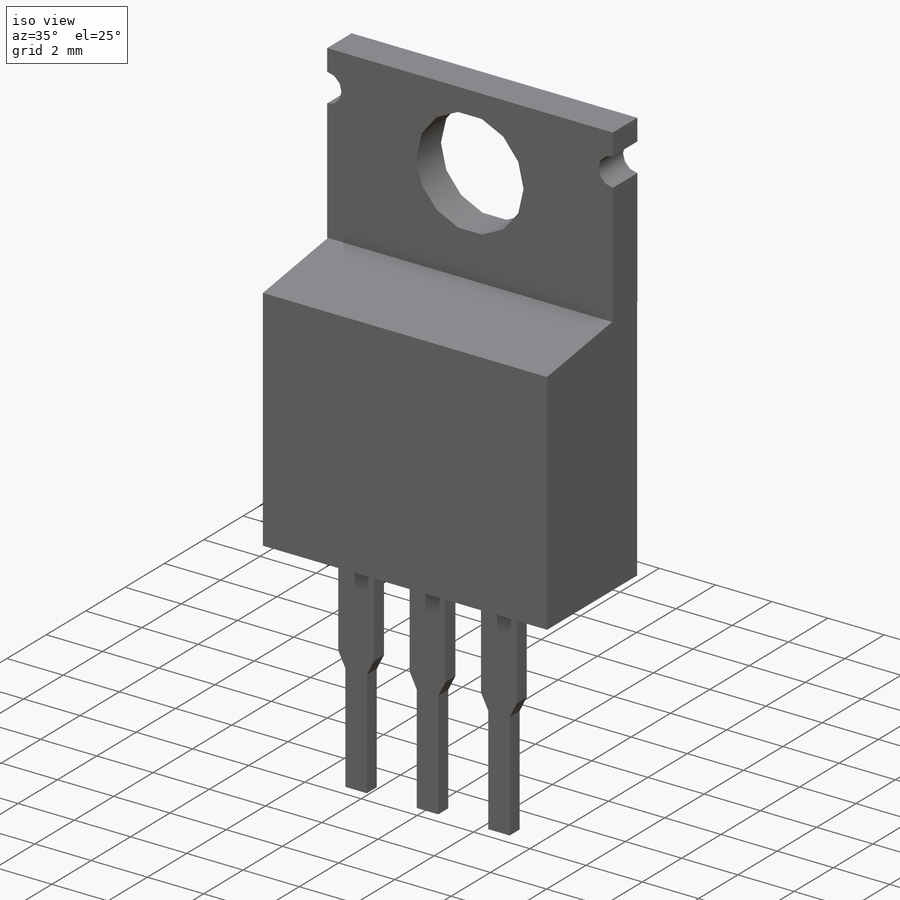
[diagram: iso view]
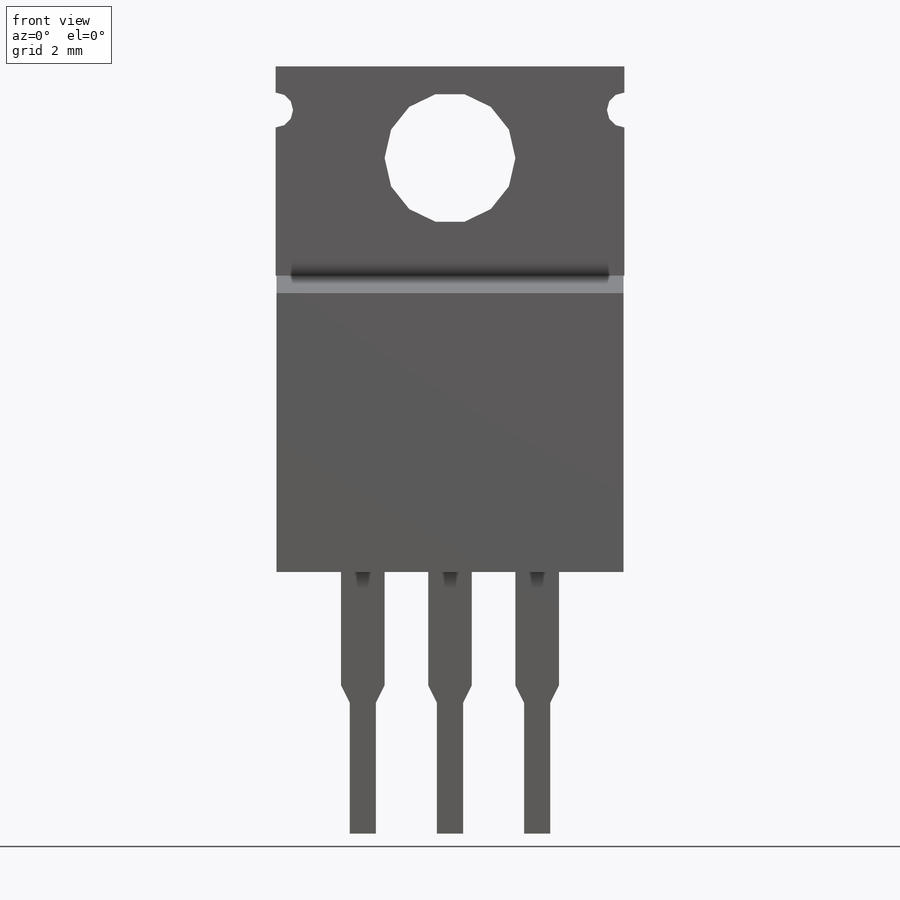
[diagram: front view]
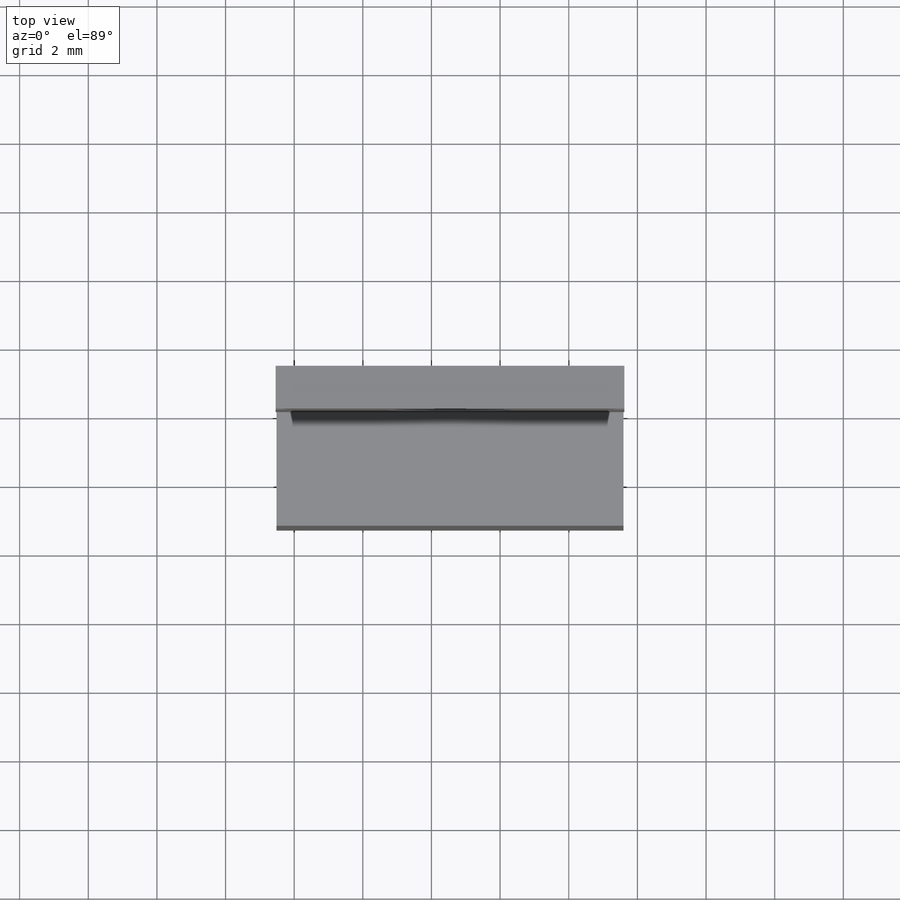
[diagram: top view]
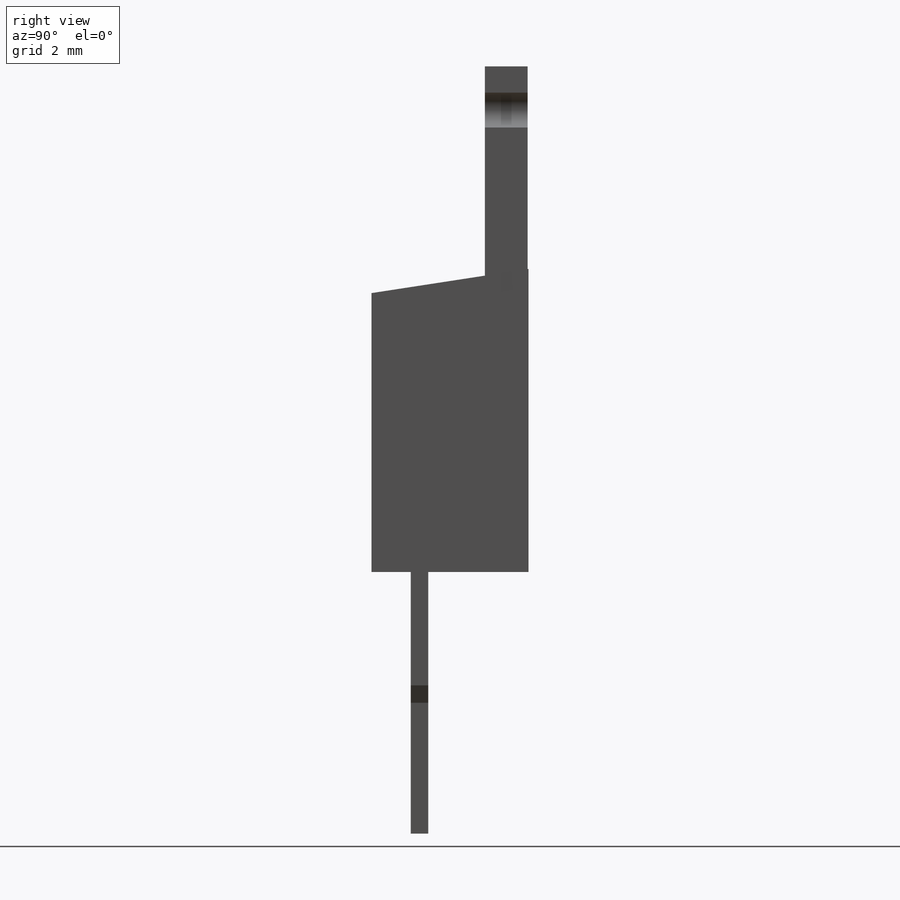
[diagram: right view]
SOLIDWORKS PART (.sldprt)
format: sldprt  version: not decoded by parser v0  size: 314,368 bytes
history: native  units: mm
features: sketch x10, cut_extrude x7, plane x4, material x1, extrude x1, pattern_linear x1 (+12 scaffold rows collapsed)
feature tree (36):
  scaffold x12  (default folders/planes/origin — collapsed)
  material  "Material <not specified>"
  plane  "Plane2"  Offset=1.397mm
  plane  "Plane3"  Offset=3.81mm
  plane  "Plane4"  Offset=2.54mm
  sketch  "Sketch2"  dims[D1=10.16mm D2=4.572mm D3=7.62mm D4=3.175mm]
  extrude  "Base-Extrude"  Depth=14.732mm
  sketch  "Sketch3"  dims[D1=1.27mm D2=6.096mm D3=6.604mm]
  cut_extrude  "Cut-Extrude1"  [1 undecoded]
  sketch  "Sketch4"  dims[D1=3.81mm D2=2.667mm]
  cut_extrude  "Cut-Extrude2"  Depth=14.732mm
  sketch  "Sketch5"
  cut_extrude  "Cut-Extrude4"  Depth=0.0254mm
  sketch  "Sketch6"
  cut_extrude  "Cut-Extrude5"  Depth=0.0254mm
  sketch  "Sketch7"  dims[D1=1.2446mm D2=3.302mm D3=1.2446mm]
  cut_extrude  "Cut-Extrude6"  Depth=0.0254mm
  sketch  "Sketch8"  dims[D1=1.016mm D2=1.27mm]
  cut_extrude  "Cut-Extrude7"  Depth=2.54mm
  sketch  "Sketch9"  dims[c1.D1=7.62mm c2.D1=0.508mm c2.D5=1.27mm c2.D6=1.0mm c2.D7=5.0mm]
  plane  "Board Plane"
  sketch  "Sketch11"  dims[D1=0.762mm D2=0.254mm D3=4.318mm]
  cut_extrude  "Cut-Extrude8"  Depth=1.27mm
  pattern_linear  "LPattern1"  Count1=3 Count2=1 Spacing1=2.54mm Spacing2=50mm
  sketch  "Component_Outline"
decode coverage: 15 of 19 modeling features carry decoded parameters
note: 1 parameter value undecoded
note: suppression state not decoded; provenance and decode notes live in map.json
